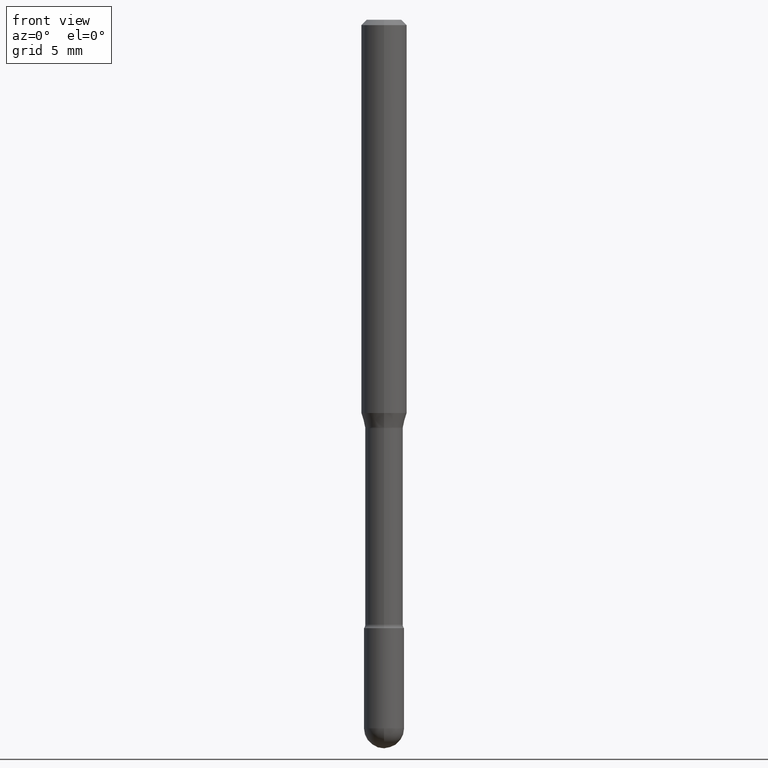
[diagram: clean part render]
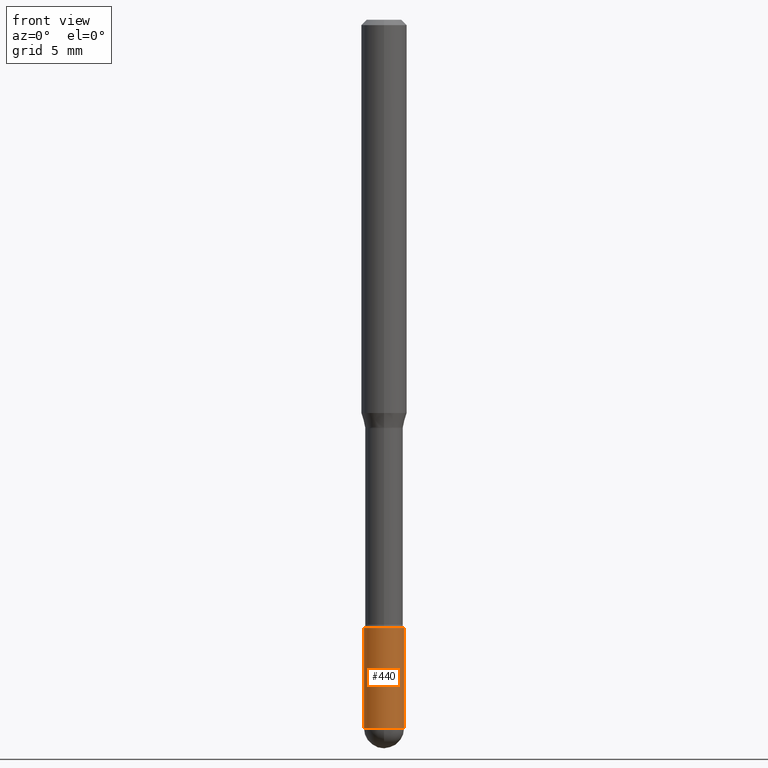
[diagram: same view with one face highlighted and labeled with its STEP entity id]
A machine part, front view. The second image highlights one B-rep face of the part: STEP entity #440.
In plain terms, the highlighted cylindrical surface (edge-blend (fillet) strip) has radius 1.397 mm, axis along (-0, 0, 1).
Its self-contained STEP definition (entity closure, byte-faithful):
#5 = DIRECTION ( 'NONE',  ( -2.445468806185136597E-29, 3.491481338843145583E-15, 1.000000000000000000 ) ) ;
#8 = DIRECTION ( 'NONE',  ( 1.000000000000000000, -6.982962677686266711E-15, 4.876176775795935793E-29 ) ) ;
#26 = EDGE_CURVE ( 'NONE', #393, #239, #455, .T. ) ;
#79 = CARTESIAN_POINT ( 'NONE',  ( 0.05500000000000000028, -3.840629472727446888E-16, 2.681897226687764826E-30 ) ) ;
#85 = LINE ( 'NONE', #265, #229 ) ;
#90 = VERTEX_POINT ( 'NONE', #127 ) ;
#95 = CARTESIAN_POINT ( 'NONE',  ( 0.05500000000000000028, -6.694915467231730455E-15, -1.944999999999999840 ) ) ;
#101 = VECTOR ( 'NONE', #258, 39.37007874015748143 ) ;
#106 = EDGE_CURVE ( 'NONE', #393, #90, #85, .T. ) ;
#121 = ORIENTED_EDGE ( 'NONE', *, *, #26, .T. ) ;
#127 = CARTESIAN_POINT ( 'NONE',  ( -0.05500000000000000028, -5.920054015290930021E-15, -1.669999999999999929 ) ) ;
#133 = CYLINDRICAL_SURFACE ( 'NONE', #191, 0.05500000000000000028 ) ;
#141 = DIRECTION ( 'NONE',  ( 1.000000000000000000, -6.982962677686262766E-15, 0.000000000000000000 ) ) ;
#178 = DIRECTION ( 'NONE',  ( -2.445468806185136597E-29, 3.491481338843145583E-15, 1.000000000000000000 ) ) ;
#191 = AXIS2_PLACEMENT_3D ( 'NONE', #394, #5, #8 ) ;
#199 = AXIS2_PLACEMENT_3D ( 'NONE', #396, #434, #557 ) ;
#203 = VERTEX_POINT ( 'NONE', #556 ) ;
#221 = DIRECTION ( 'NONE',  ( -2.445468806185136877E-29, 3.491481338843145188E-15, 1.000000000000000000 ) ) ;
#229 = VECTOR ( 'NONE', #221, 39.37007874015748143 ) ;
#239 = VERTEX_POINT ( 'NONE', #422 ) ;
#245 = ORIENTED_EDGE ( 'NONE', *, *, #106, .F. ) ;
#251 = EDGE_LOOP ( 'NONE', ( #245, #121, #400, #516, #418 ) ) ;
#255 = CARTESIAN_POINT ( 'NONE',  ( -0.05500000000000000028, -5.920054015290930810E-15, -1.944999999999999840 ) ) ;
#258 = DIRECTION ( 'NONE',  ( -2.445468806185136877E-29, 3.491481338843145188E-15, 1.000000000000000000 ) ) ;
#265 = CARTESIAN_POINT ( 'NONE',  ( -0.05500000000000000028, 3.907985046680551042E-16, -2.705414299640198362E-30 ) ) ;
#275 = CARTESIAN_POINT ( 'NONE',  ( 4.756436828030090255E-29, -6.790931204049917095E-15, -1.944999999999999840 ) ) ;
#276 = DIRECTION ( 'NONE',  ( 1.000000000000000000, -6.982962677686262766E-15, 0.000000000000000000 ) ) ;
#296 = AXIS2_PLACEMENT_3D ( 'NONE', #488, #178, #276 ) ;
#298 = EDGE_CURVE ( 'NONE', #515, #203, #304, .T. ) ;
#304 = LINE ( 'NONE', #79, #101 ) ;
#345 = CIRCLE ( 'NONE', #296, 0.05500000000000000028 ) ;
#367 = EDGE_CURVE ( 'NONE', #239, #515, #538, .T. ) ;
#379 = AXIS2_PLACEMENT_3D ( 'NONE', #275, #444, #141 ) ;
#393 = VERTEX_POINT ( 'NONE', #255 ) ;
#394 = CARTESIAN_POINT ( 'NONE',  ( 0.000000000000000000, 0.000000000000000000, 0.000000000000000000 ) ) ;
#396 = CARTESIAN_POINT ( 'NONE',  ( 4.756436828030090255E-29, -6.790931204049917095E-15, -1.944999999999999840 ) ) ;
#400 = ORIENTED_EDGE ( 'NONE', *, *, #367, .T. ) ;
#401 = EDGE_CURVE ( 'NONE', #90, #203, #345, .T. ) ;
#418 = ORIENTED_EDGE ( 'NONE', *, *, #401, .F. ) ;
#422 = CARTESIAN_POINT ( 'NONE',  ( -3.907985046680076246E-16, -0.05500000000000680733, -1.944999999999999618 ) ) ;
#434 = DIRECTION ( 'NONE',  ( -2.445468806185136597E-29, 3.491481338843145583E-15, 1.000000000000000000 ) ) ;
#440 = ADVANCED_FACE ( 'NONE', ( #560 ), #133, .T. ) ;
#444 = DIRECTION ( 'NONE',  ( -2.445468806185136597E-29, 3.491481338843145583E-15, 1.000000000000000000 ) ) ;
#455 = CIRCLE ( 'NONE', #199, 0.05500000000000000028 ) ;
#488 = CARTESIAN_POINT ( 'NONE',  ( 4.083932906329177803E-29, -5.830773835868053056E-15, -1.669999999999999929 ) ) ;
#515 = VERTEX_POINT ( 'NONE', #95 ) ;
#516 = ORIENTED_EDGE ( 'NONE', *, *, #298, .T. ) ;
#538 = CIRCLE ( 'NONE', #379, 0.05500000000000000028 ) ;
#556 = CARTESIAN_POINT ( 'NONE',  ( 0.05500000000000000028, -6.214836783140797252E-15, -1.669999999999999929 ) ) ;
#557 = DIRECTION ( 'NONE',  ( 1.000000000000000000, -6.982962677686262766E-15, 0.000000000000000000 ) ) ;
#560 = FACE_OUTER_BOUND ( 'NONE', #251, .T. ) ;